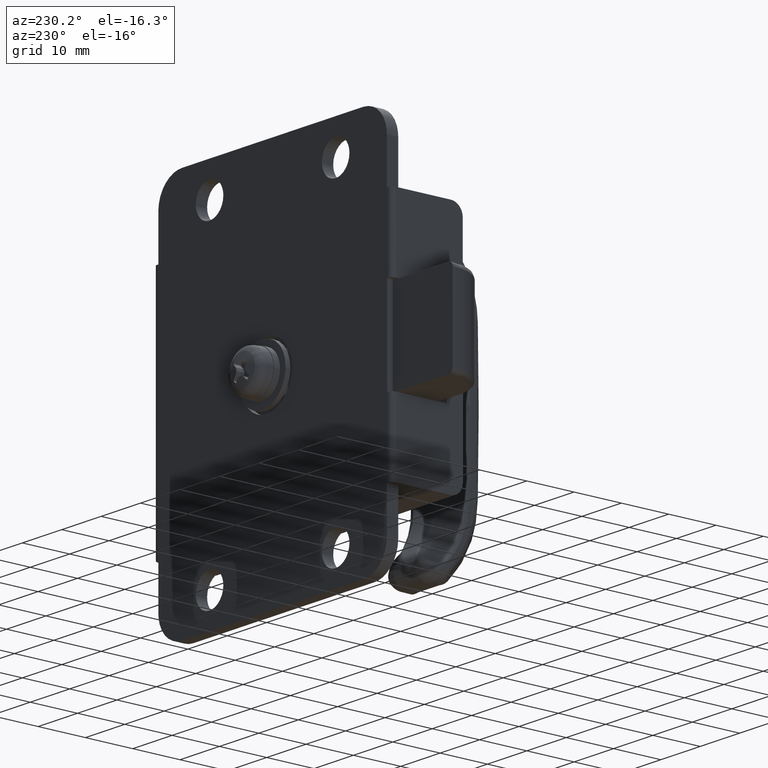
[diagram: clean part render]
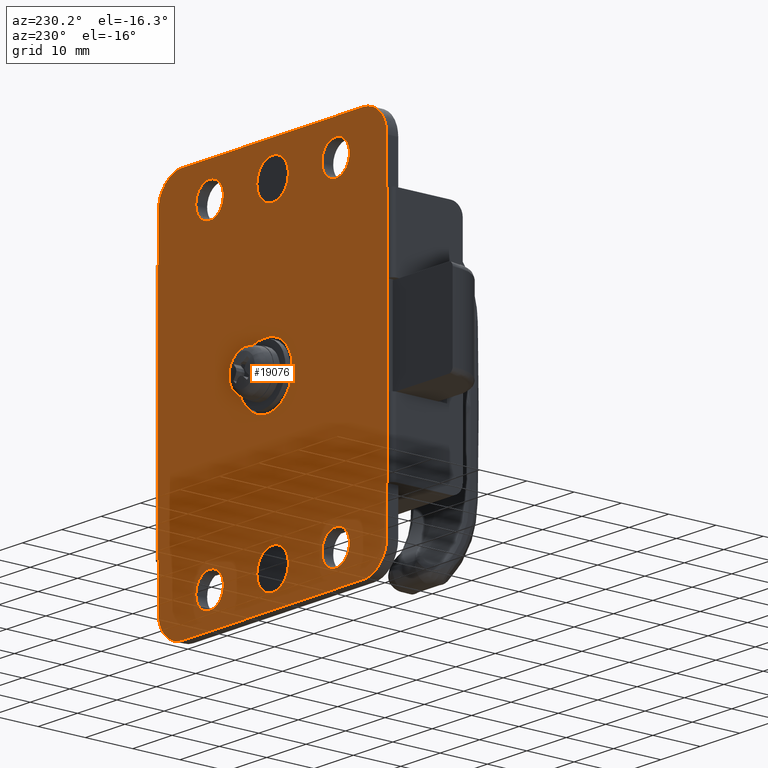
[diagram: same view with one face highlighted and labeled with its STEP entity id]
A machine part, auxiliary view. The second image highlights one B-rep face of the part: STEP entity #19076.
In plain terms, the highlighted face is a freeform B-spline surface patch.
Its self-contained STEP definition (entity closure, byte-faithful):
#15926=CARTESIAN_POINT('',(0.000001214073933,0.0,6.499999149896276));
#15927=VERTEX_POINT('',#15926);
#15928=CARTESIAN_POINT('',(-4.658229887621685,-1.147480E-012,4.533306872404705));
#15929=VERTEX_POINT('',#15928);
#15930=CARTESIAN_POINT('',(0.000001214073933,0.0,6.499999149896276));
#15931=CARTESIAN_POINT('',(-0.459841179488358,-1.132748E-013,6.500080028392675));
#15932=CARTESIAN_POINT('',(-1.244231391181941,-3.064967E-013,6.416385573736515));
#15933=CARTESIAN_POINT('',(-2.362861164571239,-5.820532E-013,6.086066021316561));
#15934=CARTESIAN_POINT('',(-3.512322364629473,-8.652045E-013,5.531662450938428));
#15935=CARTESIAN_POINT('',(-4.262184178228473,-1.049921E-012,4.940528980506946));
#15936=CARTESIAN_POINT('',(-4.658229887621685,-1.147480E-012,4.533306872404705));
#15937=B_SPLINE_CURVE_WITH_KNOTS('',3,(#15930,#15931,#15932,#15933,#15934,#15935,#15936),.UNSPECIFIED.,.F.,.U.,(4,1,1,1,4),(0.000000020541663,1.379513001466831,2.353301232342774,3.489353712815561,5.193458552180939),.UNSPECIFIED.);
#15938=EDGE_CURVE('',#15927,#15929,#15937,.T.);
#15940=CARTESIAN_POINT('',(6.500001214073810,0.0,0.000000410743780));
#15941=VERTEX_POINT('',#15940);
#15942=CARTESIAN_POINT('',(6.500001214073810,0.0,0.000000410743780));
#15943=CARTESIAN_POINT('',(6.500183381790323,0.0,0.558386322220361));
#15944=CARTESIAN_POINT('',(6.382743550411528,0.0,1.462312592546497));
#15945=CARTESIAN_POINT('',(5.932330386673600,0.0,2.745970474024642));
#15946=CARTESIAN_POINT('',(5.372904423925857,0.0,3.719500498956982));
#15947=CARTESIAN_POINT('',(4.600443006949219,0.0,4.637511982863880));
#15948=CARTESIAN_POINT('',(3.660102927218134,0.0,5.428829736314413));
#15949=CARTESIAN_POINT('',(2.480454698086698,0.0,6.059352016665108));
#15950=CARTESIAN_POINT('',(1.223085550253779,0.0,6.423913500989699));
#15951=CARTESIAN_POINT('',(0.398835597850944,0.0,6.500037162722860));
#15952=CARTESIAN_POINT('',(0.000001214073933,0.0,6.499999149896276));
#15953=B_SPLINE_CURVE_WITH_KNOTS('',3,(#15942,#15943,#15944,#15945,#15946,#15947,#15948,#15949,#15950,#15951,#15952),.UNSPECIFIED.,.F.,.U.,(4,1,1,1,1,1,1,1,4),(0.000000073727589,1.675105284821985,2.712095790243967,4.068164782767649,5.025372981359588,6.301626187787408,7.737448314140335,9.013733064899856,10.210239478051360),.UNSPECIFIED.);
#15954=EDGE_CURVE('',#15941,#15927,#15953,.T.);
#15956=CARTESIAN_POINT('',(0.000001214073933,0.0,-6.500000850103724));
#15957=VERTEX_POINT('',#15956);
#15958=CARTESIAN_POINT('',(0.000001214073933,0.0,-6.500000850103724));
#15959=CARTESIAN_POINT('',(0.425419468091053,0.0,-6.500038131746238));
#15960=CARTESIAN_POINT('',(1.329443442783953,0.0,-6.410982996405305));
#15961=CARTESIAN_POINT('',(2.553552627935445,0.0,-6.023199337967311));
#15962=CARTESIAN_POINT('',(3.745949273180482,0.0,-5.366904245080368));
#15963=CARTESIAN_POINT('',(4.662928157023343,0.0,-4.585712041696086));
#15964=CARTESIAN_POINT('',(5.445884586437501,0.0,-3.607325601022900));
#15965=CARTESIAN_POINT('',(6.038566420373886,0.0,-2.530662644440230));
#15966=CARTESIAN_POINT('',(6.419047375966314,0.0,-1.276271735364180));
#15967=CARTESIAN_POINT('',(6.500029881581288,0.0,-0.398831912028541));
#15968=CARTESIAN_POINT('',(6.500001214073810,0.0,0.000000410743780));
#15969=B_SPLINE_CURVE_WITH_KNOTS('',3,(#15958,#15959,#15960,#15961,#15962,#15963,#15964,#15965,#15966,#15967,#15968),.UNSPECIFIED.,.F.,.U.,(4,1,1,1,1,1,1,1,4),(0.000000073292902,1.276262834598748,2.712096167475313,3.828844210639872,5.344389993466797,6.301627065927329,7.577911994136068,9.013734320144378,10.210240899329250),.UNSPECIFIED.);
#15970=EDGE_CURVE('',#15957,#15941,#15969,.T.);
#15972=CARTESIAN_POINT('',(-4.792301662805270,1.084331E-011,-4.391337459658550));
#15973=VERTEX_POINT('',#15972);
#15974=CARTESIAN_POINT('',(-4.792301662805270,1.084331E-011,-4.391337459658550));
#15975=CARTESIAN_POINT('',(-4.470014266427232,1.011408E-011,-4.743168746177070));
#15976=CARTESIAN_POINT('',(-3.853726150676412,8.719637E-012,-5.282354786039023));
#15977=CARTESIAN_POINT('',(-2.907048251229349,6.577636E-012,-5.838384777002165));
#15978=CARTESIAN_POINT('',(-1.970040585758376,4.457516E-012,-6.222041944280977));
#15979=CARTESIAN_POINT('',(-1.010385796531573,2.286152E-012,-6.449952586473560));
#15980=CARTESIAN_POINT('',(-0.308723976614770,6.985371E-013,-6.500008014039865));
#15981=CARTESIAN_POINT('',(0.000001214073933,0.0,-6.500000850103724));
#15982=B_SPLINE_CURVE_WITH_KNOTS('',3,(#15974,#15975,#15976,#15977,#15978,#15979,#15980,#15981),.UNSPECIFIED.,.F.,.U.,(4,1,1,1,1,4),(0.000000020287696,1.431385826503242,2.441789630866848,3.283761284988553,4.462556853747449,5.388741803482988),.UNSPECIFIED.);
#15983=EDGE_CURVE('',#15973,#15957,#15982,.T.);
#16070=CARTESIAN_POINT('',(-6.499998785925945,0.0,-0.000002110951268));
#16071=VERTEX_POINT('',#16070);
#16072=CARTESIAN_POINT('',(-4.658229887621685,-1.147480E-012,4.533306872404705));
#16073=CARTESIAN_POINT('',(-4.913370418764767,-1.081127E-012,4.271168208451562));
#16074=CARTESIAN_POINT('',(-5.395876241704516,-9.323505E-013,3.683400876593052));
#16075=CARTESIAN_POINT('',(-5.923361374798163,-6.950604E-013,2.745947700004574));
#16076=CARTESIAN_POINT('',(-6.372226480713704,-3.835719E-013,1.515361440164832));
#16077=CARTESIAN_POINT('',(-6.500218716589175,-1.521254E-013,0.600994009992553));
#16078=CARTESIAN_POINT('',(-6.499998785925945,0.0,-0.000002110951268));
#16079=B_SPLINE_CURVE_WITH_KNOTS('',3,(#16072,#16073,#16074,#16075,#16076,#16077,#16078),.UNSPECIFIED.,.F.,.U.,(4,1,1,1,4),(0.000000020608749,1.097420616122294,2.273243399303045,3.213875071347015,5.016782707364594),.UNSPECIFIED.);
#16080=EDGE_CURVE('',#15929,#16071,#16079,.T.);
#16106=CARTESIAN_POINT('',(-6.499998785925945,0.0,-0.000002110951268));
#16107=CARTESIAN_POINT('',(-6.500203689797423,1.488242E-012,-0.602712172582890));
#16108=CARTESIAN_POINT('',(-6.359243287920167,3.968181E-012,-1.607041241524421));
#16109=CARTESIAN_POINT('',(-5.774235636873050,7.682835E-012,-3.111406495624638));
#16110=CARTESIAN_POINT('',(-5.199644920703673,9.746427E-012,-3.947122180398708));
#16111=CARTESIAN_POINT('',(-4.792301662805270,1.084331E-011,-4.391337459658550));
#16112=B_SPLINE_CURVE_WITH_KNOTS('',3,(#16106,#16107,#16108,#16109,#16110,#16111),.UNSPECIFIED.,.F.,.U.,(4,1,1,4),(0.000000019844959,1.808062209440842,3.013435774389392,4.821497963998326),.UNSPECIFIED.);
#16113=EDGE_CURVE('',#16071,#15973,#16112,.T.);
#16144=CARTESIAN_POINT('',(-1.499998785926152,0.0,-37.000000000000007));
#16145=VERTEX_POINT('',#16144);
#16146=CARTESIAN_POINT('',(1.366604669854620,-0.000000201454575,-35.789727548058458));
#16147=VERTEX_POINT('',#16146);
#16148=CARTESIAN_POINT('',(-1.499998785926152,0.0,-37.000000000000007));
#16149=CARTESIAN_POINT('',(-1.183723643104041,-0.000000022226679,-37.000071322777082));
#16150=CARTESIAN_POINT('',(-0.684392125966702,-0.000000057317901,-36.940447573322693));
#16151=CARTESIAN_POINT('',(0.015671610982104,-0.000000106515861,-36.719378660604193));
#16152=CARTESIAN_POINT('',(0.688793547945396,-0.000000153820449,-36.384289295974490));
#16153=CARTESIAN_POINT('',(1.134482768710872,-0.000000185141884,-36.028384720098657));
#16154=CARTESIAN_POINT('',(1.366604669854620,-0.000000201454575,-35.789727548058458));
#16155=B_SPLINE_CURVE_WITH_KNOTS('',3,(#16148,#16149,#16150,#16151,#16152,#16153,#16154),.UNSPECIFIED.,.F.,.U.,(4,1,1,1,4),(0.000000030593807,0.948806400947654,1.498125983850119,2.197227317522573,3.195974322571772),.UNSPECIFIED.);
#16156=EDGE_CURVE('',#16145,#16147,#16155,.T.);
#16158=CARTESIAN_POINT('',(-5.499998785925827,0.0,-33.000001612231983));
#16159=VERTEX_POINT('',#16158);
#16160=CARTESIAN_POINT('',(-5.499998785925827,0.0,-33.000001612231983));
#16161=CARTESIAN_POINT('',(-5.500001525574868,0.0,-33.261790844047297));
#16162=CARTESIAN_POINT('',(-5.435656975014309,0.0,-33.916343581664258));
#16163=CARTESIAN_POINT('',(-5.134778120963142,0.0,-34.757280794492381));
#16164=CARTESIAN_POINT('',(-4.642063680529684,0.0,-35.514370881577442));
#16165=CARTESIAN_POINT('',(-4.128324850574525,0.0,-36.047407948665011));
#16166=CARTESIAN_POINT('',(-3.524094921574918,0.0,-36.472911637829050));
#16167=CARTESIAN_POINT('',(-2.677876856124759,0.0,-36.873290390772397));
#16168=CARTESIAN_POINT('',(-1.974576003946698,0.0,-37.000376842314203));
#16169=CARTESIAN_POINT('',(-1.499998785926152,0.0,-37.000000000000007));
#16170=B_SPLINE_CURVE_WITH_KNOTS('',3,(#16160,#16161,#16162,#16163,#16164,#16165,#16166,#16167,#16168,#16169),.UNSPECIFIED.,.F.,.U.,(4,1,1,1,1,1,1,4),(0.000000108576959,0.785400250302001,1.963511929764617,2.650759280250349,3.485196690524951,4.172444822397500,4.859682621764862,6.283223822821110),.UNSPECIFIED.);
#16171=EDGE_CURVE('',#16159,#16145,#16170,.T.);
#16173=CARTESIAN_POINT('',(-1.499998785926152,0.0,-29.0));
#16174=VERTEX_POINT('',#16173);
#16175=CARTESIAN_POINT('',(-1.499998785926152,0.0,-29.0));
#16176=CARTESIAN_POINT('',(-1.827250290858319,0.0,-28.999915900455019));
#16177=CARTESIAN_POINT('',(-2.399894273736523,0.0,-29.070693973084371));
#16178=CARTESIAN_POINT('',(-3.237199313619088,0.0,-29.364456743479170));
#16179=CARTESIAN_POINT('',(-3.898847471605669,0.0,-29.766588783660978));
#16180=CARTESIAN_POINT('',(-4.479362974508260,0.0,-30.299319848093599));
#16181=CARTESIAN_POINT('',(-4.947297036001580,0.0,-30.914266562067979));
#16182=CARTESIAN_POINT('',(-5.376722391936021,0.0,-31.822063207208039));
#16183=CARTESIAN_POINT('',(-5.500270547289325,0.0,-32.558177384986067));
#16184=CARTESIAN_POINT('',(-5.499998785925827,0.0,-33.000001612231983));
#16185=B_SPLINE_CURVE_WITH_KNOTS('',3,(#16175,#16176,#16177,#16178,#16179,#16180,#16181,#16182,#16183,#16184),.UNSPECIFIED.,.F.,.U.,(4,1,1,1,1,1,1,4),(0.000000108015656,0.981740046017023,1.718072172561969,2.650760046777956,3.288865581487397,4.074276608930439,4.957859922224799,6.283225640193822),.UNSPECIFIED.);
#16186=EDGE_CURVE('',#16174,#16159,#16185,.T.);
#16188=CARTESIAN_POINT('',(1.449111005366359,0.000000200762087,-30.297638762638659));
#16189=VERTEX_POINT('',#16188);
#16190=CARTESIAN_POINT('',(1.449111005366359,0.000000200762087,-30.297638762638659));
#16191=CARTESIAN_POINT('',(1.169217391736826,0.000000181708193,-29.991844871452042));
#16192=CARTESIAN_POINT('',(0.622481160158471,0.000000144488857,-29.556002127386261));
#16193=CARTESIAN_POINT('',(-0.394748353222614,0.000000075240462,-29.108414249240081));
#16194=CARTESIAN_POINT('',(-1.085449209246435,0.000000028220665,-28.999775342014139));
#16195=CARTESIAN_POINT('',(-1.499998785926152,0.0,-29.0));
#16196=B_SPLINE_CURVE_WITH_KNOTS('',3,(#16190,#16191,#16192,#16193,#16194,#16195),.UNSPECIFIED.,.F.,.U.,(4,1,1,4),(0.000000032336446,1.243563568369599,2.072585475714446,3.316149011692135),.UNSPECIFIED.);
#16197=EDGE_CURVE('',#16189,#16174,#16196,.T.);
#16281=CARTESIAN_POINT('',(2.500001214073523,0.0,-32.999998387768052));
#16282=VERTEX_POINT('',#16281);
#16283=CARTESIAN_POINT('',(1.366604669854620,-0.000000201454575,-35.789727548058458));
#16284=CARTESIAN_POINT('',(1.635857933224612,-0.000000181489759,-35.513256069546081));
#16285=CARTESIAN_POINT('',(2.064722550578943,-0.000000138727260,-34.921083845692678));
#16286=CARTESIAN_POINT('',(2.426006793312563,-0.000000068506233,-33.948667881310783));
#16287=CARTESIAN_POINT('',(2.500050078368654,-0.000000022061798,-33.305508610894201));
#16288=CARTESIAN_POINT('',(2.500001214073523,0.0,-32.999998387768052));
#16289=B_SPLINE_CURVE_WITH_KNOTS('',3,(#16283,#16284,#16285,#16286,#16287,#16288),.UNSPECIFIED.,.F.,.U.,(4,1,1,4),(0.000000025766387,1.157719774764949,2.170722427097725,3.087251581884832),.UNSPECIFIED.);
#16290=EDGE_CURVE('',#16147,#16282,#16289,.T.);
#16313=CARTESIAN_POINT('',(2.500001214073523,0.0,-32.999998387768052));
#16314=CARTESIAN_POINT('',(2.500200048237245,0.000000030999490,-32.582729446023599));
#16315=CARTESIAN_POINT('',(2.392626751905113,0.000000081503543,-31.902919187501549));
#16316=CARTESIAN_POINT('',(1.995059901470020,0.000000149173262,-30.992050435979792));
#16317=CARTESIAN_POINT('',(1.657970652811291,0.000000183836423,-30.525466744668691));
#16318=CARTESIAN_POINT('',(1.449111005366359,0.000000200762087,-30.297638762638659));
#16319=B_SPLINE_CURVE_WITH_KNOTS('',3,(#16313,#16314,#16315,#16316,#16317,#16318),.UNSPECIFIED.,.F.,.U.,(4,1,1,4),(0.000000023937576,1.251735844676579,2.039862201080216,2.967074945533899),.UNSPECIFIED.);
#16320=EDGE_CURVE('',#16282,#16189,#16319,.T.);
#16351=CARTESIAN_POINT('',(-1.499998785926152,0.0,29.0));
#16352=VERTEX_POINT('',#16351);
#16353=CARTESIAN_POINT('',(1.366604669854617,-0.000000201454577,30.210272451941542));
#16354=VERTEX_POINT('',#16353);
#16355=CARTESIAN_POINT('',(-1.499998785926152,0.0,29.0));
#16356=CARTESIAN_POINT('',(-1.250317663630833,-0.000000017546691,28.999984620846490));
#16357=CARTESIAN_POINT('',(-0.684358410308945,-0.000000057320271,29.053110349382720));
#16358=CARTESIAN_POINT('',(0.034944396499078,-0.000000107870284,29.280243266396859));
#16359=CARTESIAN_POINT('',(0.755097250104413,-0.000000158480035,29.667301565973631));
#16360=CARTESIAN_POINT('',(1.146074654532496,-0.000000185956521,29.983566181588511));
#16361=CARTESIAN_POINT('',(1.366604669854617,-0.000000201454577,30.210272451941542));
#16362=B_SPLINE_CURVE_WITH_KNOTS('',3,(#16355,#16356,#16357,#16358,#16359,#16360,#16361),.UNSPECIFIED.,.F.,.U.,(4,1,1,1,4),(0.000000030591613,0.749055477044994,1.697848369384143,2.247167952248278,3.195974322571788),.UNSPECIFIED.);
#16363=EDGE_CURVE('',#16352,#16354,#16362,.T.);
#16365=CARTESIAN_POINT('',(-5.499998785925828,0.0,32.999998387768031));
#16366=VERTEX_POINT('',#16365);
#16367=CARTESIAN_POINT('',(-5.499998785925828,0.0,32.999998387768031));
#16368=CARTESIAN_POINT('',(-5.500236439886116,0.0,32.574551275655423));
#16369=CARTESIAN_POINT('',(-5.381388510438470,0.0,31.838378130129222));
#16370=CARTESIAN_POINT('',(-4.985056415219311,0.0,30.987098883025030));
#16371=CARTESIAN_POINT('',(-4.523707441163798,0.0,30.348842265182430));
#16372=CARTESIAN_POINT('',(-4.026223227794317,0.0,29.869333311717551));
#16373=CARTESIAN_POINT('',(-3.409533238678607,0.0,29.462763137422449));
#16374=CARTESIAN_POINT('',(-2.596158501622823,0.0,29.108062774392241));
#16375=CARTESIAN_POINT('',(-1.925453131651718,0.0,28.999771771772750));
#16376=CARTESIAN_POINT('',(-1.499998785926152,0.0,29.0));
#16377=B_SPLINE_CURVE_WITH_KNOTS('',3,(#16367,#16368,#16369,#16370,#16371,#16372,#16373,#16374,#16375,#16376),.UNSPECIFIED.,.F.,.U.,(4,1,1,1,1,1,1,4),(0.000000108588200,1.276275908885647,2.208947290357570,2.798027215679833,3.632465371676748,4.270617909345514,5.006949965513584,6.283223822821134),.UNSPECIFIED.);
#16378=EDGE_CURVE('',#16366,#16352,#16377,.T.);
#16380=CARTESIAN_POINT('',(-1.499998785926152,0.0,37.000000000000007));
#16381=VERTEX_POINT('',#16380);
#16382=CARTESIAN_POINT('',(-1.499998785926152,0.0,37.000000000000007));
#16383=CARTESIAN_POINT('',(-1.843617509283612,0.0,37.000098211888307));
#16384=CARTESIAN_POINT('',(-2.514432584139297,0.0,36.913020234389307));
#16385=CARTESIAN_POINT('',(-3.478864647927550,0.0,36.527462647887347));
#16386=CARTESIAN_POINT('',(-4.261317476336598,0.0,35.947064808642523));
#16387=CARTESIAN_POINT('',(-4.850098436693358,0.0,35.238455646514169));
#16388=CARTESIAN_POINT('',(-5.233409948449523,0.0,34.510631877974028));
#16389=CARTESIAN_POINT('',(-5.453173304095849,0.0,33.752659379661303));
#16390=CARTESIAN_POINT('',(-5.500023054912599,0.0,33.245429712103522));
#16391=CARTESIAN_POINT('',(-5.499998785925828,0.0,32.999998387768031));
#16392=B_SPLINE_CURVE_WITH_KNOTS('',3,(#16382,#16383,#16384,#16385,#16386,#16387,#16388,#16389,#16390,#16391),.UNSPECIFIED.,.F.,.U.,(4,1,1,1,1,1,1,4),(0.000000108008802,1.030838134689634,2.012606892789120,3.092557573881690,3.927009305494114,4.761507978761594,5.546930569404064,6.283225640193830),.UNSPECIFIED.);
#16393=EDGE_CURVE('',#16381,#16366,#16392,.T.);
#16395=CARTESIAN_POINT('',(1.449111005366362,0.000000200762088,35.702361237361352));
#16396=VERTEX_POINT('',#16395);
#16397=CARTESIAN_POINT('',(1.449111005366362,0.000000200762088,35.702361237361352));
#16398=CARTESIAN_POINT('',(1.239123320001692,0.000000186467074,35.931616870198411));
#16399=CARTESIAN_POINT('',(0.752162978039586,0.000000153317011,36.352124863564889));
#16400=CARTESIAN_POINT('',(-0.239360043507532,0.000000085818598,36.859442777924158));
#16401=CARTESIAN_POINT('',(-1.033624314040652,0.000000031748670,37.000342210986837));
#16402=CARTESIAN_POINT('',(-1.499998785926152,0.0,37.000000000000007));
#16403=B_SPLINE_CURVE_WITH_KNOTS('',3,(#16397,#16398,#16399,#16400,#16401,#16402),.UNSPECIFIED.,.F.,.U.,(4,1,1,4),(0.000000032336572,0.932668274647672,1.917137315132633,3.316149011692134),.UNSPECIFIED.);
#16404=EDGE_CURVE('',#16396,#16381,#16403,.T.);
#16487=CARTESIAN_POINT('',(2.500001214073523,0.0,33.000001612231948));
#16488=VERTEX_POINT('',#16487);
#16489=CARTESIAN_POINT('',(1.366604669854617,-0.000000201454577,30.210272451941542));
#16490=CARTESIAN_POINT('',(1.635887110017126,-0.000000181490989,30.486726906531000));
#16491=CARTESIAN_POINT('',(1.988393988247696,-0.000000146327231,30.973672285058228));
#16492=CARTESIAN_POINT('',(2.394225970409088,-0.000000077785456,31.922834085017310));
#16493=CARTESIAN_POINT('',(2.500248403765069,-0.000000031353820,32.565816138244323));
#16494=CARTESIAN_POINT('',(2.500001214073523,0.0,33.000001612231948));
#16495=B_SPLINE_CURVE_WITH_KNOTS('',3,(#16489,#16490,#16491,#16492,#16493,#16494),.UNSPECIFIED.,.F.,.U.,(4,1,1,4),(0.000000025762369,1.157719774763500,1.784811702620926,3.087251581884830),.UNSPECIFIED.);
#16496=EDGE_CURVE('',#16354,#16488,#16495,.T.);
#16520=CARTESIAN_POINT('',(2.500001214073523,0.0,33.000001612231948));
#16521=CARTESIAN_POINT('',(2.500241529310926,0.000000032147319,33.432720911696897));
#16522=CARTESIAN_POINT('',(2.373389318403611,0.000000089540679,34.205264744601394));
#16523=CARTESIAN_POINT('',(1.937818739859973,0.000000156172384,35.102161289169750));
#16524=CARTESIAN_POINT('',(1.595272414628507,0.000000188912266,35.542856642503317));
#16525=CARTESIAN_POINT('',(1.449111005366362,0.000000200762088,35.702361237361352));
#16526=B_SPLINE_CURVE_WITH_KNOTS('',3,(#16520,#16521,#16522,#16523,#16524,#16525),.UNSPECIFIED.,.F.,.U.,(4,1,1,4),(0.000000023941106,1.298107694202588,2.318029034854990,2.967074945533884),.UNSPECIFIED.);
#16527=EDGE_CURVE('',#16488,#16396,#16526,.T.);
#16558=CARTESIAN_POINT('',(17.172446280712450,2.643588E-011,35.260097426525313));
#16559=VERTEX_POINT('',#16558);
#16560=CARTESIAN_POINT('',(14.500001214073921,0.0,36.500000000000007));
#16561=VERTEX_POINT('',#16560);
#16562=CARTESIAN_POINT('',(17.172446280712450,2.643588E-011,35.260097426525313));
#16563=CARTESIAN_POINT('',(16.978195358187829,2.451434E-011,35.489924577788621));
#16564=CARTESIAN_POINT('',(16.541700835938521,2.019653E-011,35.888162284643357));
#16565=CARTESIAN_POINT('',(15.640083571687150,1.127772E-011,36.367689438863749));
#16566=CARTESIAN_POINT('',(14.927673431621921,4.230541E-012,36.500376171870208));
#16567=CARTESIAN_POINT('',(14.500001214073921,0.0,36.500000000000007));
#16568=B_SPLINE_CURVE_WITH_KNOTS('',3,(#16562,#16563,#16564,#16565,#16566,#16567),.UNSPECIFIED.,.F.,.U.,(4,1,1,4),(0.000000035719244,0.902750078083420,1.757967933580385,3.040829194683356),.UNSPECIFIED.);
#16569=EDGE_CURVE('',#16559,#16561,#16568,.T.);
#16631=CARTESIAN_POINT('',(16.909241963286739,-2.616963E-011,30.461190049936601));
#16632=VERTEX_POINT('',#16631);
#16638=CARTESIAN_POINT('',(14.500001214073921,0.0,29.500000000000000));
#16639=VERTEX_POINT('',#16638);
#16640=CARTESIAN_POINT('',(14.500001214073921,0.0,29.500000000000000));
#16641=CARTESIAN_POINT('',(14.887550420704660,-4.209634E-012,29.499782910625498));
#16642=CARTESIAN_POINT('',(15.524028612143960,-1.112318E-011,29.606828965461059));
#16643=CARTESIAN_POINT('',(16.330371282973640,-1.988183E-011,29.985511183098019));
#16644=CARTESIAN_POINT('',(16.728562714012810,-2.420706E-011,30.289678100098921));
#16645=CARTESIAN_POINT('',(16.909241963286739,-2.616963E-011,30.461190049936601));
#16646=B_SPLINE_CURVE_WITH_KNOTS('',3,(#16640,#16641,#16642,#16643,#16644,#16645),.UNSPECIFIED.,.F.,.U.,(4,1,1,4),(0.000000026550223,1.162570061384857,1.909918242445474,2.657279248128230),.UNSPECIFIED.);
#16647=EDGE_CURVE('',#16639,#16632,#16646,.T.);
#16649=CARTESIAN_POINT('',(11.000001214074359,0.0,32.999998254870377));
#16650=VERTEX_POINT('',#16649);
#16651=CARTESIAN_POINT('',(11.000001214074359,0.0,32.999998254870377));
#16652=CARTESIAN_POINT('',(10.999922702182561,0.0,32.699332547900873));
#16653=CARTESIAN_POINT('',(11.063127002079380,0.0,32.212598866230422));
#16654=CARTESIAN_POINT('',(11.324660972148060,0.0,31.467165103587771));
#16655=CARTESIAN_POINT('',(11.714510682934741,0.0,30.825663256581880));
#16656=CARTESIAN_POINT('',(12.264584710573491,0.0,30.275669783306089));
#16657=CARTESIAN_POINT('',(12.876769079647010,0.0,29.872032341781200));
#16658=CARTESIAN_POINT('',(13.612390613247991,0.0,29.577846867380160));
#16659=CARTESIAN_POINT('',(14.185015083390700,0.0,29.499888402775799));
#16660=CARTESIAN_POINT('',(14.500001214073921,0.0,29.500000000000000));
#16661=B_SPLINE_CURVE_WITH_KNOTS('',3,(#16651,#16652,#16653,#16654,#16655,#16656,#16657,#16658,#16659,#16660),.UNSPECIFIED.,.F.,.U.,(4,1,1,1,1,1,1,4),(0.000000102146859,0.901978376184235,1.460361594069925,2.362368726357496,3.135454784094645,3.779750652652952,4.552895210826786,5.497820656481328),.UNSPECIFIED.);
#16662=EDGE_CURVE('',#16650,#16639,#16661,.T.);
#16664=CARTESIAN_POINT('',(14.500001214073921,0.0,36.500000000000007));
#16665=CARTESIAN_POINT('',(14.199339371578240,0.0,36.500073603136499));
#16666=CARTESIAN_POINT('',(13.583720982109700,0.0,36.420219185640377));
#16667=CARTESIAN_POINT('',(12.849562354033880,0.0,36.116159061575061));
#16668=CARTESIAN_POINT('',(12.281395214752010,0.0,35.726212968532103));
#16669=CARTESIAN_POINT('',(11.844263560641931,0.0,35.310077359996477));
#16670=CARTESIAN_POINT('',(11.507175547486920,0.0,34.843703045063862));
#16671=CARTESIAN_POINT('',(11.242759166916461,0.0,34.318377104087837));
#16672=CARTESIAN_POINT('',(11.052430161298391,0.0,33.730154135407048));
#16673=CARTESIAN_POINT('',(10.999949685649170,0.0,33.257710660482381));
#16674=CARTESIAN_POINT('',(11.000001214074359,0.0,32.999998254870377));
#16675=B_SPLINE_CURVE_WITH_KNOTS('',3,(#16664,#16665,#16666,#16667,#16668,#16669,#16670,#16671,#16672,#16673,#16674),.UNSPECIFIED.,.F.,.U.,(4,1,1,1,1,1,1,1,4),(0.000000101519645,0.901978698585748,1.846935036658562,2.362369571799328,2.963665000347733,3.650890574721147,4.080416664221138,4.724695051800475,5.497822623661585),.UNSPECIFIED.);
#16676=EDGE_CURVE('',#16561,#16650,#16675,.T.);
#16695=CARTESIAN_POINT('',(18.000001214073482,0.0,33.000001745129588));
#16696=VERTEX_POINT('',#16695);
#16697=CARTESIAN_POINT('',(18.000001214073482,0.0,33.000001745129588));
#16698=CARTESIAN_POINT('',(18.000375954078049,4.939996E-012,33.422339378035247));
#16699=CARTESIAN_POINT('',(17.849804508286450,1.451617E-011,34.241040216324372));
#16700=CARTESIAN_POINT('',(17.428847521624849,2.289455E-011,34.957337013357922));
#16701=CARTESIAN_POINT('',(17.172446280712450,2.643588E-011,35.260097426525313));
#16702=B_SPLINE_CURVE_WITH_KNOTS('',3,(#16697,#16698,#16699,#16700,#16701),.UNSPECIFIED.,.F.,.U.,(4,1,4),(0.000000020260841,1.266871388197176,2.456992204959122),.UNSPECIFIED.);
#16703=EDGE_CURVE('',#16696,#16559,#16702,.T.);
#16705=CARTESIAN_POINT('',(16.909241963286739,-2.616963E-011,30.461190049936601));
#16706=CARTESIAN_POINT('',(17.102426251745161,-2.428037E-011,30.644474286787609));
#16707=CARTESIAN_POINT('',(17.494609004277820,-1.945681E-011,31.112425332768080));
#16708=CARTESIAN_POINT('',(17.900008935678802,-1.052199E-011,31.979225583623538));
#16709=CARTESIAN_POINT('',(18.000140132188431,-3.507597E-012,32.659717045239283));
#16710=CARTESIAN_POINT('',(18.000001214073482,0.0,33.000001745129588));
#16711=B_SPLINE_CURVE_WITH_KNOTS('',3,(#16705,#16706,#16707,#16708,#16709,#16710),.UNSPECIFIED.,.F.,.U.,(4,1,1,4),(0.000000032784071,0.798904985991805,1.819715466482118,2.840543909845533),.UNSPECIFIED.);
#16712=EDGE_CURVE('',#16632,#16696,#16711,.T.);
#16765=CARTESIAN_POINT('',(-14.827553719287620,2.643588E-011,35.260097426525313));
#16766=VERTEX_POINT('',#16765);
#16767=CARTESIAN_POINT('',(-17.499998785926149,0.0,36.500000000000007));
#16768=VERTEX_POINT('',#16767);
#16769=CARTESIAN_POINT('',(-14.827553719287620,2.643588E-011,35.260097426525313));
#16770=CARTESIAN_POINT('',(-15.011595583175030,2.461533E-011,35.477810054493901));
#16771=CARTESIAN_POINT('',(-15.444974978962289,2.032833E-011,35.878707982146452));
#16772=CARTESIAN_POINT('',(-16.344063395590059,1.143453E-011,36.364771253181473));
#16773=CARTESIAN_POINT('',(-17.072335161758080,4.230456E-012,36.500363370163427));
#16774=CARTESIAN_POINT('',(-17.499998785926149,0.0,36.500000000000007));
#16775=B_SPLINE_CURVE_WITH_KNOTS('',3,(#16769,#16770,#16771,#16772,#16773,#16774),.UNSPECIFIED.,.F.,.U.,(4,1,1,4),(0.000000035719462,0.855234592803688,1.757967933579776,3.040829194683393),.UNSPECIFIED.);
#16776=EDGE_CURVE('',#16766,#16768,#16775,.T.);
#16839=CARTESIAN_POINT('',(-15.090758036713330,-2.616963E-011,30.461190049936601));
#16840=VERTEX_POINT('',#16839);
#16846=CARTESIAN_POINT('',(-17.499998785926149,0.0,29.500000000000000));
#16847=VERTEX_POINT('',#16846);
#16848=CARTESIAN_POINT('',(-17.499998785926149,0.0,29.500000000000000));
#16849=CARTESIAN_POINT('',(-17.181664059233679,-3.457813E-012,29.499876175342660));
#16850=CARTESIAN_POINT('',(-16.683508647054470,-8.868872E-012,29.568482560411280));
#16851=CARTESIAN_POINT('',(-15.848915378165060,-1.793438E-011,29.873020901774240));
#16852=CARTESIAN_POINT('',(-15.371714584144319,-2.311783E-011,30.194228167559050));
#16853=CARTESIAN_POINT('',(-15.090758036713330,-2.616963E-011,30.461190049936601));
#16854=B_SPLINE_CURVE_WITH_KNOTS('',3,(#16848,#16849,#16850,#16851,#16852,#16853),.UNSPECIFIED.,.F.,.U.,(4,1,1,4),(0.000000026551452,0.954961783637544,1.494709213344978,2.657279248128231),.UNSPECIFIED.);
#16855=EDGE_CURVE('',#16847,#16840,#16854,.T.);
#16857=CARTESIAN_POINT('',(-20.999998785925708,0.0,32.999998254870377));
#16858=VERTEX_POINT('',#16857);
#16859=CARTESIAN_POINT('',(-20.999998785925708,0.0,32.999998254870377));
#16860=CARTESIAN_POINT('',(-21.000033966090509,0.0,32.742296463949593));
#16861=CARTESIAN_POINT('',(-20.936520819292362,0.0,32.169598709866733));
#16862=CARTESIAN_POINT('',(-20.649618638772381,0.0,31.397680872629369));
#16863=CARTESIAN_POINT('',(-20.165323733761010,0.0,30.682466262378931));
#16864=CARTESIAN_POINT('',(-19.633492071302999,0.0,30.194460036657109));
#16865=CARTESIAN_POINT('',(-19.042395582718530,0.0,29.840254144550940));
#16866=CARTESIAN_POINT('',(-18.373281700251749,0.0,29.577377604144370));
#16867=CARTESIAN_POINT('',(-17.829307713539901,0.0,29.499866078639101));
#16868=CARTESIAN_POINT('',(-17.499998785926149,0.0,29.500000000000000));
#16869=B_SPLINE_CURVE_WITH_KNOTS('',3,(#16859,#16860,#16861,#16862,#16863,#16864,#16865,#16866,#16867,#16868),.UNSPECIFIED.,.F.,.U.,(4,1,1,1,1,1,1,4),(0.000000102129741,0.773114264907706,1.718072327788990,2.448262336582348,3.350222836631181,3.865654999035774,4.509934724384633,5.497820656481434),.UNSPECIFIED.);
#16870=EDGE_CURVE('',#16858,#16847,#16869,.T.);
#16872=CARTESIAN_POINT('',(-17.499998785926149,0.0,36.500000000000007));
#16873=CARTESIAN_POINT('',(-17.800666238035650,0.0,36.500089410015882));
#16874=CARTESIAN_POINT('',(-18.287395768216442,0.0,36.436861764500563));
#16875=CARTESIAN_POINT('',(-19.032829091105079,0.0,36.175337764026601));
#16876=CARTESIAN_POINT('',(-19.736061267654431,0.0,35.748043516245879));
#16877=CARTESIAN_POINT('',(-20.340343912036879,0.0,35.105461982914463));
#16878=CARTESIAN_POINT('',(-20.726270174498872,0.0,34.414141276611950));
#16879=CARTESIAN_POINT('',(-20.947565553250239,0.0,33.730150839641588));
#16880=CARTESIAN_POINT('',(-21.000050407612100,0.0,33.257710797364702));
#16881=CARTESIAN_POINT('',(-20.999998785925708,0.0,32.999998254870377));
#16882=B_SPLINE_CURVE_WITH_KNOTS('',3,(#16872,#16873,#16874,#16875,#16876,#16877,#16878,#16879,#16880,#16881),.UNSPECIFIED.,.F.,.U.,(4,1,1,1,1,1,1,4),(0.000000101531078,0.901978698593791,1.460362116029285,2.362369571803066,3.350224037189566,4.080416664221897,4.724695051800785,5.497822623661588),.UNSPECIFIED.);
#16883=EDGE_CURVE('',#16768,#16858,#16882,.T.);
#16902=CARTESIAN_POINT('',(-13.999998785926589,0.0,33.000001745129588));
#16903=VERTEX_POINT('',#16902);
#16904=CARTESIAN_POINT('',(-13.999998785926589,0.0,33.000001745129588));
#16905=CARTESIAN_POINT('',(-13.999726327085520,4.640630E-012,33.396745533298478));
#16906=CARTESIAN_POINT('',(-14.140847061883800,1.421751E-011,34.215507036772379));
#16907=CARTESIAN_POINT('',(-14.554546196165720,2.266674E-011,34.937861317123499));
#16908=CARTESIAN_POINT('',(-14.827553719287620,2.643588E-011,35.260097426525313));
#16909=B_SPLINE_CURVE_WITH_KNOTS('',3,(#16904,#16905,#16906,#16907,#16908),.UNSPECIFIED.,.F.,.U.,(4,1,4),(0.000000020260708,1.190120836983459,2.456992204959135),.UNSPECIFIED.);
#16910=EDGE_CURVE('',#16903,#16766,#16909,.T.);
#16912=CARTESIAN_POINT('',(-15.090758036713330,-2.616963E-011,30.461190049936601));
#16913=CARTESIAN_POINT('',(-14.854577751074860,-2.386104E-011,30.685154815079720));
#16914=CARTESIAN_POINT('',(-14.445440104749840,-1.855805E-011,31.199617939725218));
#16915=CARTESIAN_POINT('',(-14.079198133360601,-9.454852E-012,32.082752255294999));
#16916=CARTESIAN_POINT('',(-13.999930538974210,-3.049990E-012,32.704111198651873));
#16917=CARTESIAN_POINT('',(-13.999998785926589,0.0,33.000001745129588));
#16918=B_SPLINE_CURVE_WITH_KNOTS('',3,(#16912,#16913,#16914,#16915,#16916,#16917),.UNSPECIFIED.,.F.,.U.,(4,1,1,4),(0.000000032783439,0.976438649750582,1.952871826141500,2.840543909845548),.UNSPECIFIED.);
#16919=EDGE_CURVE('',#16840,#16903,#16918,.T.);
#16973=CARTESIAN_POINT('',(-14.827553719287620,2.643588E-011,-30.739902573474691));
#16974=VERTEX_POINT('',#16973);
#16975=CARTESIAN_POINT('',(-17.499998785926149,0.0,-29.500000000000000));
#16976=VERTEX_POINT('',#16975);
#16977=CARTESIAN_POINT('',(-14.827553719287620,2.643588E-011,-30.739902573474691));
#16978=CARTESIAN_POINT('',(-14.960499649969790,2.512077E-011,-30.582697100474789));
#16979=CARTESIAN_POINT('',(-15.333246941418370,2.143355E-011,-30.213437316549751));
#16980=CARTESIAN_POINT('',(-16.011789999694809,1.472139E-011,-29.791193908043461));
#16981=CARTESIAN_POINT('',(-16.787309417233409,7.049936E-012,-29.546791706249369));
#16982=CARTESIAN_POINT('',(-17.278274307782560,2.193303E-012,-29.499981756137661));
#16983=CARTESIAN_POINT('',(-17.499998785926149,0.0,-29.500000000000000));
#16984=B_SPLINE_CURVE_WITH_KNOTS('',3,(#16977,#16978,#16979,#16980,#16981,#16982,#16983),.UNSPECIFIED.,.F.,.U.,(4,1,1,1,4),(0.000000035719433,0.617664572872586,1.567910452550628,2.375649172285493,3.040829194683379),.UNSPECIFIED.);
#16985=EDGE_CURVE('',#16974,#16976,#16984,.T.);
#17046=CARTESIAN_POINT('',(-15.090758036713330,-2.616963E-011,-35.538809950063403));
#17047=VERTEX_POINT('',#17046);
#17053=CARTESIAN_POINT('',(-17.499998785926149,0.0,-36.500000000000007));
#17054=VERTEX_POINT('',#17053);
#17055=CARTESIAN_POINT('',(-17.499998785926149,0.0,-36.500000000000007));
#17056=CARTESIAN_POINT('',(-17.112427373352560,-4.209875E-012,-36.500276749443692));
#17057=CARTESIAN_POINT('',(-16.586706636472961,-9.920354E-012,-36.411721809007062));
#17058=CARTESIAN_POINT('',(-15.766483011255360,-1.882978E-011,-36.073166965714968));
#17059=CARTESIAN_POINT('',(-15.351670098643760,-2.333556E-011,-35.786664500175263));
#17060=CARTESIAN_POINT('',(-15.090758036713330,-2.616963E-011,-35.538809950063403));
#17061=B_SPLINE_CURVE_WITH_KNOTS('',3,(#17055,#17056,#17057,#17058,#17059,#17060),.UNSPECIFIED.,.F.,.U.,(4,1,1,4),(0.000000026550921,1.162570061385353,1.577748749399349,2.657279248128239),.UNSPECIFIED.);
#17062=EDGE_CURVE('',#17054,#17047,#17061,.T.);
#17064=CARTESIAN_POINT('',(-20.999998785925719,0.0,-33.000001745129623));
#17065=VERTEX_POINT('',#17064);
#17066=CARTESIAN_POINT('',(-20.999998785925719,0.0,-33.000001745129623));
#17067=CARTESIAN_POINT('',(-21.000092480214459,0.0,-33.300669419493040));
#17068=CARTESIAN_POINT('',(-20.936857095172719,0.0,-33.787398914455970));
#17069=CARTESIAN_POINT('',(-20.675344201064370,0.0,-34.532833323383912));
#17070=CARTESIAN_POINT('',(-20.285492394492259,0.0,-35.174344083989070));
#17071=CARTESIAN_POINT('',(-19.735408594543092,0.0,-35.724319737061187));
#17072=CARTESIAN_POINT('',(-19.135238101968799,0.0,-36.120047272157990));
#17073=CARTESIAN_POINT('',(-18.401918630941431,0.0,-36.418561109218707));
#17074=CARTESIAN_POINT('',(-17.829305363549810,0.0,-36.500125039213302));
#17075=CARTESIAN_POINT('',(-17.499998785926149,0.0,-36.500000000000007));
#17076=B_SPLINE_CURVE_WITH_KNOTS('',3,(#17066,#17067,#17068,#17069,#17070,#17071,#17072,#17073,#17074,#17075),.UNSPECIFIED.,.F.,.U.,(4,1,1,1,1,1,1,4),(0.000000102119286,0.901978376160910,1.460361594049888,2.362368726343066,3.135454784083588,3.779750652644653,4.509934724382101,5.497820656481443),.UNSPECIFIED.);
#17077=EDGE_CURVE('',#17065,#17054,#17076,.T.);
#17079=CARTESIAN_POINT('',(-17.499998785926149,0.0,-29.500000000000000));
#17080=CARTESIAN_POINT('',(-17.857948921010120,0.0,-29.499814921975609));
#17081=CARTESIAN_POINT('',(-18.516430165023799,0.0,-29.601931348080530));
#17082=CARTESIAN_POINT('',(-19.340982517444829,0.0,-29.985747982172651));
#17083=CARTESIAN_POINT('',(-19.984729643303339,0.0,-30.494550620432509));
#17084=CARTESIAN_POINT('',(-20.420352583386830,0.0,-31.032087605400751));
#17085=CARTESIAN_POINT('',(-20.738407020014218,0.0,-31.627155001259709));
#17086=CARTESIAN_POINT('',(-20.945982071615710,0.0,-32.255529213409268));
#17087=CARTESIAN_POINT('',(-21.000050318238259,0.0,-32.742289332884368));
#17088=CARTESIAN_POINT('',(-20.999998785925719,0.0,-33.000001745129623));
#17089=B_SPLINE_CURVE_WITH_KNOTS('',3,(#17079,#17080,#17081,#17082,#17083,#17084,#17085,#17086,#17087,#17088),.UNSPECIFIED.,.F.,.U.,(4,1,1,1,1,1,1,4),(0.000000101523584,1.073785355475691,1.975798393274916,2.705995962222471,3.522026930227669,4.037463279813372,4.724695051800845,5.497822623661584),.UNSPECIFIED.);
#17090=EDGE_CURVE('',#16976,#17065,#17089,.T.);
#17109=CARTESIAN_POINT('',(-13.999998785926589,0.0,-32.999998254870427));
#17110=VERTEX_POINT('',#17109);
#17111=CARTESIAN_POINT('',(-13.999998785926589,0.0,-32.999998254870427));
#17112=CARTESIAN_POINT('',(-13.999858701329590,3.891965E-012,-32.667260494607049));
#17113=CARTESIAN_POINT('',(-14.066200376228640,9.279487E-012,-32.206662300336227));
#17114=CARTESIAN_POINT('',(-14.339761547394881,1.832447E-011,-31.433374567515450));
#17115=CARTESIAN_POINT('',(-14.596010819928839,2.323689E-011,-31.013394749845620));
#17116=CARTESIAN_POINT('',(-14.827553719287620,2.643588E-011,-30.739902573474691));
#17117=B_SPLINE_CURVE_WITH_KNOTS('',3,(#17111,#17112,#17113,#17114,#17115,#17116),.UNSPECIFIED.,.F.,.U.,(4,1,1,4),(0.000000020261674,0.998159314376637,1.382052701721269,2.456992204959148),.UNSPECIFIED.);
#17118=EDGE_CURVE('',#17110,#16974,#17117,.T.);
#17120=CARTESIAN_POINT('',(-15.090758036713330,-2.616963E-011,-35.538809950063403));
#17121=CARTESIAN_POINT('',(-14.800779881579540,-2.333719E-011,-35.264024194939608));
#17122=CARTESIAN_POINT('',(-14.406527427068720,-1.787502E-011,-34.734119474337952));
#17123=CARTESIAN_POINT('',(-14.069840697747400,-8.691976E-012,-33.843238450667833));
#17124=CARTESIAN_POINT('',(-13.999916838139340,-3.050062E-012,-33.295895824754197));
#17125=CARTESIAN_POINT('',(-13.999998785926589,0.0,-32.999998254870427));
#17126=B_SPLINE_CURVE_WITH_KNOTS('',3,(#17120,#17121,#17122,#17123,#17124,#17125),.UNSPECIFIED.,.F.,.U.,(4,1,1,4),(0.000000032786482,1.198355624146126,1.952871826141386,2.840543909845533),.UNSPECIFIED.);
#17127=EDGE_CURVE('',#17047,#17110,#17126,.T.);
#17179=CARTESIAN_POINT('',(17.172446280712450,2.643588E-011,-30.739902573474691));
#17180=VERTEX_POINT('',#17179);
#17181=CARTESIAN_POINT('',(14.500001214073921,0.0,-29.500000000000000));
#17182=VERTEX_POINT('',#17181);
#17183=CARTESIAN_POINT('',(17.172446280712450,2.643588E-011,-30.739902573474691));
#17184=CARTESIAN_POINT('',(16.957764899689781,2.431224E-011,-30.485852966236820));
#17185=CARTESIAN_POINT('',(16.562904057956629,2.040627E-011,-30.135446519930280));
#17186=CARTESIAN_POINT('',(15.866517233342799,1.351760E-011,-29.752911948359291));
#17187=CARTESIAN_POINT('',(15.212696117015049,7.049991E-012,-29.546785521495309));
#17188=CARTESIAN_POINT('',(14.721726003117610,2.193306E-012,-29.499979090886690));
#17189=CARTESIAN_POINT('',(14.500001214073921,0.0,-29.500000000000000));
#17190=B_SPLINE_CURVE_WITH_KNOTS('',3,(#17183,#17184,#17185,#17186,#17187,#17188,#17189),.UNSPECIFIED.,.F.,.U.,(4,1,1,1,4),(0.000000035718695,0.997776417624719,1.567910452550205,2.375649172285527,3.040829194683383),.UNSPECIFIED.);
#17191=EDGE_CURVE('',#17180,#17182,#17190,.T.);
#17253=CARTESIAN_POINT('',(16.909241963286739,-2.616963E-011,-35.538809950063403));
#17254=VERTEX_POINT('',#17253);
#17260=CARTESIAN_POINT('',(14.500001214073921,0.0,-36.500000000000007));
#17261=VERTEX_POINT('',#17260);
#17262=CARTESIAN_POINT('',(14.500001214073921,0.0,-36.500000000000007));
#17263=CARTESIAN_POINT('',(14.693758851110861,-2.104633E-012,-36.500006569196792));
#17264=CARTESIAN_POINT('',(15.150469271954099,-7.065509E-012,-36.462007751211807));
#17265=CARTESIAN_POINT('',(16.007493458374981,-1.637467E-011,-36.216803109296777));
#17266=CARTESIAN_POINT('',(16.598252975663328,-2.279161E-011,-35.834476825575138));
#17267=CARTESIAN_POINT('',(16.909241963286739,-2.616963E-011,-35.538809950063403));
#17268=B_SPLINE_CURVE_WITH_KNOTS('',3,(#17262,#17263,#17264,#17265,#17266,#17267),.UNSPECIFIED.,.F.,.U.,(4,1,1,4),(0.000000026554362,0.581278631659986,1.370142638461770,2.657279248128203),.UNSPECIFIED.);
#17269=EDGE_CURVE('',#17261,#17254,#17268,.T.);
#17271=CARTESIAN_POINT('',(11.000001214074359,0.0,-33.000001745129623));
#17272=VERTEX_POINT('',#17271);
#17273=CARTESIAN_POINT('',(11.000001214074359,0.0,-33.000001745129623));
#17274=CARTESIAN_POINT('',(10.999969935584531,0.0,-33.229073064340568));
#17275=CARTESIAN_POINT('',(11.043753833955449,0.0,-33.672882924514582));
#17276=CARTESIAN_POINT('',(11.268502565050630,0.0,-34.431089884342953));
#17277=CARTESIAN_POINT('',(11.698475978946670,0.0,-35.168837693654382));
#17278=CARTESIAN_POINT('',(12.287075004279480,0.0,-35.742982506087422));
#17279=CARTESIAN_POINT('',(12.903523545764340,0.0,-36.138658280460803));
#17280=CARTESIAN_POINT('',(13.612376207372421,0.0,-36.422178529937703));
#17281=CARTESIAN_POINT('',(14.185023115351100,0.0,-36.500091978318842));
#17282=CARTESIAN_POINT('',(14.500001214073921,0.0,-36.500000000000007));
#17283=B_SPLINE_CURVE_WITH_KNOTS('',3,(#17273,#17274,#17275,#17276,#17277,#17278,#17279,#17280,#17281,#17282),.UNSPECIFIED.,.F.,.U.,(4,1,1,1,1,1,1,4),(0.000000102122082,0.687211086697017,1.331503588241032,2.362368726342363,3.221355579600102,3.779750652644481,4.552895210822042,5.497820656481443),.UNSPECIFIED.);
#17284=EDGE_CURVE('',#17272,#17261,#17283,.T.);
#17286=CARTESIAN_POINT('',(14.500001214073921,0.0,-29.500000000000000));
#17287=CARTESIAN_POINT('',(14.242299139782549,0.0,-29.499965865731632));
#17288=CARTESIAN_POINT('',(13.698240711894639,0.0,-29.560308992526110));
#17289=CARTESIAN_POINT('',(12.978408487563200,0.0,-29.817888447212368));
#17290=CARTESIAN_POINT('',(12.307706300373949,0.0,-30.236859536019310));
#17291=CARTESIAN_POINT('',(11.843103965239280,0.0,-30.690177345604631));
#17292=CARTESIAN_POINT('',(11.471487037368210,0.0,-31.217959062987848));
#17293=CARTESIAN_POINT('',(11.120136726300551,0.0,-31.926437836870839));
#17294=CARTESIAN_POINT('',(10.999612058923621,0.0,-32.570423419329799));
#17295=CARTESIAN_POINT('',(11.000001214074359,0.0,-33.000001745129623));
#17296=B_SPLINE_CURVE_WITH_KNOTS('',3,(#17286,#17287,#17288,#17289,#17290,#17291,#17292,#17293,#17294,#17295),.UNSPECIFIED.,.F.,.U.,(4,1,1,1,1,1,1,4),(0.000000101520264,0.773114541068735,1.632169228009765,2.276468607746480,3.135455907719549,3.564992090166676,4.209273811052853,5.497822623661580),.UNSPECIFIED.);
#17297=EDGE_CURVE('',#17182,#17272,#17296,.T.);
#17316=CARTESIAN_POINT('',(18.000001214073489,0.0,-32.999998254870420));
#17317=VERTEX_POINT('',#17316);
#17318=CARTESIAN_POINT('',(18.000001214073489,0.0,-32.999998254870420));
#17319=CARTESIAN_POINT('',(18.000096006204629,3.592504E-012,-32.692862465098607));
#17320=CARTESIAN_POINT('',(17.932166587658589,9.579035E-012,-32.181052879674517));
#17321=CARTESIAN_POINT('',(17.649484169341410,1.860938E-011,-31.409016881333919));
#17322=CARTESIAN_POINT('',(17.370850600490741,2.369355E-011,-30.974353507450360));
#17323=CARTESIAN_POINT('',(17.172446280712450,2.643588E-011,-30.739902573474691));
#17324=B_SPLINE_CURVE_WITH_KNOTS('',3,(#17318,#17319,#17320,#17321,#17322,#17323),.UNSPECIFIED.,.F.,.U.,(4,1,1,4),(0.000000020260511,0.921378152963553,1.535614072211885,2.456992204959153),.UNSPECIFIED.);
#17325=EDGE_CURVE('',#17317,#17180,#17324,.T.);
#17327=CARTESIAN_POINT('',(16.909241963286739,-2.616963E-011,-35.538809950063403));
#17328=CARTESIAN_POINT('',(17.145423745975091,-2.386096E-011,-35.314837416624783));
#17329=CARTESIAN_POINT('',(17.452205242958229,-1.988364E-011,-34.928982928568601));
#17330=CARTESIAN_POINT('',(17.756773780003130,-1.359121E-011,-34.318531241275792));
#17331=CARTESIAN_POINT('',(17.947393801735590,-7.472260E-012,-33.724909338893859));
#17332=CARTESIAN_POINT('',(18.000056255125131,-2.745026E-012,-33.266303147995963));
#17333=CARTESIAN_POINT('',(18.000001214073489,0.0,-32.999998254870420));
#17334=B_SPLINE_CURVE_WITH_KNOTS('',3,(#17327,#17328,#17329,#17330,#17331,#17332,#17333),.UNSPECIFIED.,.F.,.U.,(4,1,1,1,4),(0.000000032787105,0.976438649752833,1.464637220260930,2.041638956600455,2.840543909845541),.UNSPECIFIED.);
#17335=EDGE_CURVE('',#17254,#17317,#17334,.T.);
#17786=CARTESIAN_POINT('',(27.750001214073951,0.0,-25.0));
#17787=VERTEX_POINT('',#17786);
#17800=CARTESIAN_POINT('',(27.750001214073951,0.0,25.0));
#17801=VERTEX_POINT('',#17800);
#17802=CARTESIAN_POINT('',(27.750001214073951,0.0,25.0));
#17803=CARTESIAN_POINT('',(27.750001214073951,0.0,-25.0));
#17804=QUASI_UNIFORM_CURVE('',1,(#17802,#17803),.UNSPECIFIED.,.F.,.U.);
#17805=EDGE_CURVE('',#17801,#17787,#17804,.T.);
#17841=CARTESIAN_POINT('',(-30.749998785926149,0.0,25.0));
#17842=VERTEX_POINT('',#17841);
#17855=CARTESIAN_POINT('',(-30.749998785926199,0.0,9.650000000000000));
#17856=VERTEX_POINT('',#17855);
#17857=CARTESIAN_POINT('',(-30.749998785926199,0.0,9.650000000000000));
#17858=CARTESIAN_POINT('',(-30.749998785926149,0.0,25.0));
#17859=QUASI_UNIFORM_CURVE('',1,(#17857,#17858),.UNSPECIFIED.,.F.,.U.);
#17860=EDGE_CURVE('',#17856,#17842,#17859,.T.);
#17897=CARTESIAN_POINT('',(-30.749998785926199,0.0,-9.650000000000000));
#17898=VERTEX_POINT('',#17897);
#17912=CARTESIAN_POINT('',(-30.749998785926149,0.0,-25.0));
#17913=VERTEX_POINT('',#17912);
#17914=CARTESIAN_POINT('',(-30.749998785926149,0.0,-25.0));
#17915=CARTESIAN_POINT('',(-30.749998785926199,0.0,-9.650000000000000));
#17916=QUASI_UNIFORM_CURVE('',1,(#17914,#17915),.UNSPECIFIED.,.F.,.U.);
#17917=EDGE_CURVE('',#17913,#17898,#17916,.T.);
#18388=CARTESIAN_POINT('',(-30.549998785926149,0.0,-9.650000000000000));
#18389=VERTEX_POINT('',#18388);
#18390=CARTESIAN_POINT('',(-30.749998785926199,0.0,-9.650000000000000));
#18391=CARTESIAN_POINT('',(-30.549998785926149,0.0,-9.650000000000000));
#18392=QUASI_UNIFORM_CURVE('',1,(#18390,#18391),.UNSPECIFIED.,.F.,.U.);
#18393=EDGE_CURVE('',#17898,#18389,#18392,.T.);
#18434=CARTESIAN_POINT('',(-30.549998785926149,0.0,9.650000000000000));
#18435=VERTEX_POINT('',#18434);
#18436=CARTESIAN_POINT('',(-30.749998785926199,0.0,9.650000000000000));
#18437=CARTESIAN_POINT('',(-30.549998785926149,0.0,9.650000000000000));
#18438=QUASI_UNIFORM_CURVE('',1,(#18436,#18437),.UNSPECIFIED.,.F.,.U.);
#18439=EDGE_CURVE('',#17856,#18435,#18438,.T.);
#18481=CARTESIAN_POINT('',(21.500001214073951,0.0,40.0));
#18482=VERTEX_POINT('',#18481);
#18483=CARTESIAN_POINT('',(-24.499998785926149,0.0,40.0));
#18484=VERTEX_POINT('',#18483);
#18485=CARTESIAN_POINT('',(21.500001214073951,0.0,40.0));
#18486=CARTESIAN_POINT('',(-24.499998785926149,0.0,40.0));
#18487=QUASI_UNIFORM_CURVE('',1,(#18485,#18486),.UNSPECIFIED.,.F.,.U.);
#18488=EDGE_CURVE('',#18482,#18484,#18487,.T.);
#18526=CARTESIAN_POINT('',(27.500001214073851,0.0,34.0));
#18527=VERTEX_POINT('',#18526);
#18528=CARTESIAN_POINT('',(27.500001214073851,0.0,34.0));
#18529=CARTESIAN_POINT('',(27.500210420914090,0.0,34.564525921948913));
#18530=CARTESIAN_POINT('',(27.367365259728221,0.0,35.497053638192277));
#18531=CARTESIAN_POINT('',(26.835683480575380,0.0,36.850633726623172));
#18532=CARTESIAN_POINT('',(26.086512086837129,0.0,37.957274174967353));
#18533=CARTESIAN_POINT('',(25.134953487823839,0.0,38.819508674408212));
#18534=CARTESIAN_POINT('',(24.230167654827529,0.0,39.369302800965862));
#18535=CARTESIAN_POINT('',(23.070617060058161,0.0,39.849799161951822));
#18536=CARTESIAN_POINT('',(22.138187396713018,0.0,40.000333778214191));
#18537=CARTESIAN_POINT('',(21.500001214073951,0.0,40.0));
#18538=B_SPLINE_CURVE_WITH_KNOTS('',3,(#18528,#18529,#18530,#18531,#18532,#18533,#18534,#18535,#18536,#18537),.UNSPECIFIED.,.F.,.U.,(4,1,1,1,1,1,1,4),(0.000000081936406,1.693514969100299,2.798001019309169,4.344269317369169,5.669622206618201,6.626837395485648,7.510418290801511,9.424837097253473),.UNSPECIFIED.);
#18539=EDGE_CURVE('',#18527,#18482,#18538,.T.);
#18571=CARTESIAN_POINT('',(27.500001214073851,0.0,25.0));
#18572=VERTEX_POINT('',#18571);
#18573=CARTESIAN_POINT('',(27.500001214073851,0.0,25.0));
#18574=CARTESIAN_POINT('',(27.500001214073851,0.0,34.0));
#18575=QUASI_UNIFORM_CURVE('',1,(#18573,#18574),.UNSPECIFIED.,.F.,.U.);
#18576=EDGE_CURVE('',#18572,#18527,#18575,.T.);
#18601=CARTESIAN_POINT('',(27.750001214073951,0.0,25.0));
#18602=CARTESIAN_POINT('',(27.500001214073851,0.0,25.0));
#18603=QUASI_UNIFORM_CURVE('',1,(#18601,#18602),.UNSPECIFIED.,.F.,.U.);
#18604=EDGE_CURVE('',#17801,#18572,#18603,.T.);
#18622=CARTESIAN_POINT('',(27.500001214073851,0.0,-25.0));
#18623=VERTEX_POINT('',#18622);
#18624=CARTESIAN_POINT('',(27.500001214073851,0.0,-25.0));
#18625=CARTESIAN_POINT('',(27.750001214073951,0.0,-25.0));
#18626=QUASI_UNIFORM_CURVE('',1,(#18624,#18625),.UNSPECIFIED.,.F.,.U.);
#18627=EDGE_CURVE('',#18623,#17787,#18626,.T.);
#18653=CARTESIAN_POINT('',(27.500001214073951,0.0,-34.0));
#18654=VERTEX_POINT('',#18653);
#18655=CARTESIAN_POINT('',(27.500001214073951,0.0,-34.0));
#18656=CARTESIAN_POINT('',(27.500001214073851,0.0,-25.0));
#18657=QUASI_UNIFORM_CURVE('',1,(#18655,#18656),.UNSPECIFIED.,.F.,.U.);
#18658=EDGE_CURVE('',#18654,#18623,#18657,.T.);
#18690=CARTESIAN_POINT('',(21.500001214073951,0.0,-40.0));
#18691=VERTEX_POINT('',#18690);
#18692=CARTESIAN_POINT('',(21.500001214073951,0.0,-40.0));
#18693=CARTESIAN_POINT('',(22.064527213409900,0.0,-40.000209705332537));
#18694=CARTESIAN_POINT('',(22.997059186537040,0.0,-39.867372104975082));
#18695=CARTESIAN_POINT('',(24.167049794830881,0.0,-39.407695186224743));
#18696=CARTESIAN_POINT('',(25.177082594484371,0.0,-38.793980267500977));
#18697=CARTESIAN_POINT('',(25.974235385031069,0.0,-38.053448820120209));
#18698=CARTESIAN_POINT('',(26.628137653270361,0.0,-37.160212851126317));
#18699=CARTESIAN_POINT('',(27.025221516342700,0.0,-36.394891231453002));
#18700=CARTESIAN_POINT('',(27.393238541660910,0.0,-35.325272165751556));
#18701=CARTESIAN_POINT('',(27.500184259194480,0.0,-34.539985623187789));
#18702=CARTESIAN_POINT('',(27.500001214073951,0.0,-34.0));
#18703=B_SPLINE_CURVE_WITH_KNOTS('',3,(#18692,#18693,#18694,#18695,#18696,#18697,#18698,#18699,#18700,#18701,#18702),.UNSPECIFIED.,.F.,.U.,(4,1,1,1,1,1,1,1,4),(0.000000081942222,1.693514969106068,2.798001019315040,3.755219258050587,5.227810269854395,6.037779507651692,7.068627843146659,7.804946552720887,9.424837097253452),.UNSPECIFIED.);
#18704=EDGE_CURVE('',#18691,#18654,#18703,.T.);
#18737=CARTESIAN_POINT('',(-24.499998785926149,0.0,-40.0));
#18738=VERTEX_POINT('',#18737);
#18739=CARTESIAN_POINT('',(-24.499998785926149,0.0,-40.0));
#18740=CARTESIAN_POINT('',(21.500001214073951,0.0,-40.0));
#18741=QUASI_UNIFORM_CURVE('',1,(#18739,#18740),.UNSPECIFIED.,.F.,.U.);
#18742=EDGE_CURVE('',#18738,#18691,#18741,.T.);
#18774=CARTESIAN_POINT('',(-30.499998785926049,0.0,-34.0));
#18775=VERTEX_POINT('',#18774);
#18776=CARTESIAN_POINT('',(-30.499998785926049,0.0,-34.0));
#18777=CARTESIAN_POINT('',(-30.500047563293290,0.0,-34.392698593895602));
#18778=CARTESIAN_POINT('',(-30.429856496638060,0.0,-35.104442810715121));
#18779=CARTESIAN_POINT('',(-30.107738290285109,0.0,-36.241575244356000));
#18780=CARTESIAN_POINT('',(-29.601675235678769,0.0,-37.231728739657072));
#18781=CARTESIAN_POINT('',(-28.868812725781321,0.0,-38.158944501642807));
#18782=CARTESIAN_POINT('',(-28.092863802962430,0.0,-38.845083363319233));
#18783=CARTESIAN_POINT('',(-27.272251689493402,0.0,-39.343751225871038));
#18784=CARTESIAN_POINT('',(-26.413417395938680,0.0,-39.711938184099147));
#18785=CARTESIAN_POINT('',(-25.506286642323669,0.0,-39.945068010651177));
#18786=CARTESIAN_POINT('',(-24.819064538718528,0.0,-40.000020049720469));
#18787=CARTESIAN_POINT('',(-24.499998785926149,0.0,-40.0));
#18788=B_SPLINE_CURVE_WITH_KNOTS('',3,(#18776,#18777,#18778,#18779,#18780,#18781,#18782,#18783,#18784,#18785,#18786,#18787),.UNSPECIFIED.,.F.,.U.,(4,1,1,1,1,1,1,1,1,4),(0.000000081963643,1.178095658968116,2.135314170333478,3.534332933543798,4.491554470736637,5.669622206626166,6.626837395491372,7.363158892549667,8.467633479671143,9.424837097253313),.UNSPECIFIED.);
#18789=EDGE_CURVE('',#18775,#18738,#18788,.T.);
#18821=CARTESIAN_POINT('',(-30.499998785926049,0.0,-25.0));
#18822=VERTEX_POINT('',#18821);
#18823=CARTESIAN_POINT('',(-30.499998785926049,0.0,-25.0));
#18824=CARTESIAN_POINT('',(-30.499998785926049,0.0,-34.0));
#18825=QUASI_UNIFORM_CURVE('',1,(#18823,#18824),.UNSPECIFIED.,.F.,.U.);
#18826=EDGE_CURVE('',#18822,#18775,#18825,.T.);
#18851=CARTESIAN_POINT('',(-30.749998785926149,0.0,-25.0));
#18852=CARTESIAN_POINT('',(-30.499998785926049,0.0,-25.0));
#18853=QUASI_UNIFORM_CURVE('',1,(#18851,#18852),.UNSPECIFIED.,.F.,.U.);
#18854=EDGE_CURVE('',#17913,#18822,#18853,.T.);
#18872=CARTESIAN_POINT('',(-30.499998785926149,0.0,25.0));
#18873=VERTEX_POINT('',#18872);
#18874=CARTESIAN_POINT('',(-30.499998785926149,0.0,25.0));
#18875=CARTESIAN_POINT('',(-30.749998785926149,0.0,25.0));
#18876=QUASI_UNIFORM_CURVE('',1,(#18874,#18875),.UNSPECIFIED.,.F.,.U.);
#18877=EDGE_CURVE('',#18873,#17842,#18876,.T.);
#18903=CARTESIAN_POINT('',(-30.499998785926149,0.0,34.0));
#18904=VERTEX_POINT('',#18903);
#18905=CARTESIAN_POINT('',(-30.499998785926149,0.0,34.0));
#18906=CARTESIAN_POINT('',(-30.499998785926149,0.0,25.0));
#18907=QUASI_UNIFORM_CURVE('',1,(#18905,#18906),.UNSPECIFIED.,.F.,.U.);
#18908=EDGE_CURVE('',#18904,#18873,#18907,.T.);
#18940=CARTESIAN_POINT('',(-24.499998785926149,0.0,40.0));
#18941=CARTESIAN_POINT('',(-25.064524382602428,0.0,40.000209208035727));
#18942=CARTESIAN_POINT('',(-25.997058189961901,0.0,39.867373492862889));
#18943=CARTESIAN_POINT('',(-27.167060436860030,0.0,39.407709069764351));
#18944=CARTESIAN_POINT('',(-27.966611726758540,0.0,38.921763350903902));
#18945=CARTESIAN_POINT('',(-28.669905400944881,0.0,38.344573938881723));
#18946=CARTESIAN_POINT('',(-29.381356003338219,0.0,37.559758348302822));
#18947=CARTESIAN_POINT('',(-29.947128591151699,0.0,36.602496765421677));
#18948=CARTESIAN_POINT('',(-30.386557175569308,0.0,35.374358035940652));
#18949=CARTESIAN_POINT('',(-30.500177907721621,0.0,34.539981746246667));
#18950=CARTESIAN_POINT('',(-30.499998785926149,0.0,34.0));
#18951=B_SPLINE_CURVE_WITH_KNOTS('',3,(#18940,#18941,#18942,#18943,#18944,#18945,#18946,#18947,#18948,#18949,#18950),.UNSPECIFIED.,.F.,.U.,(4,1,1,1,1,1,1,1,4),(0.000000081956845,1.693514969117638,2.798001019323910,3.755219258057119,4.491554470735315,5.522340618087805,6.921364588945574,7.804946552722127,9.424837097253448),.UNSPECIFIED.);
#18952=EDGE_CURVE('',#18484,#18904,#18951,.T.);
#18985=CARTESIAN_POINT('',(-30.549998785926149,0.0,9.650000000000000));
#18986=CARTESIAN_POINT('',(-30.549998785926149,0.0,-9.650000000000000));
#18987=QUASI_UNIFORM_CURVE('',1,(#18985,#18986),.UNSPECIFIED.,.F.,.U.);
#18988=EDGE_CURVE('',#18435,#18389,#18987,.T.);
#18993=CARTESIAN_POINT('',(-33.672073123385708,2.842171E-014,43.995999844944478));
#18994=CARTESIAN_POINT('',(30.672077643656490,2.842171E-014,43.995999844944478));
#18995=CARTESIAN_POINT('',(-33.672073123385708,2.842171E-014,-43.996001990711690));
#18996=CARTESIAN_POINT('',(30.672077643656490,2.842171E-014,-43.996001990711690));
#18997=B_SPLINE_SURFACE_WITH_KNOTS('',1,1,((#18993,#18995),(#18994,#18996)),.UNSPECIFIED.,.F.,.F.,.U.,(2,2),(2,2),(0.0,64.344150767042194),(0.0,87.992001835656168),.UNSPECIFIED.);
#18998=ORIENTED_EDGE('',*,*,#18604,.F.);
#18999=ORIENTED_EDGE('',*,*,#17805,.T.);
#19000=ORIENTED_EDGE('',*,*,#18627,.F.);
#19001=ORIENTED_EDGE('',*,*,#18658,.F.);
#19002=ORIENTED_EDGE('',*,*,#18704,.F.);
#19003=ORIENTED_EDGE('',*,*,#18742,.F.);
#19004=ORIENTED_EDGE('',*,*,#18789,.F.);
#19005=ORIENTED_EDGE('',*,*,#18826,.F.);
#19006=ORIENTED_EDGE('',*,*,#18854,.F.);
#19007=ORIENTED_EDGE('',*,*,#17917,.T.);
#19008=ORIENTED_EDGE('',*,*,#18393,.T.);
#19009=ORIENTED_EDGE('',*,*,#18988,.F.);
#19010=ORIENTED_EDGE('',*,*,#18439,.F.);
#19011=ORIENTED_EDGE('',*,*,#17860,.T.);
#19012=ORIENTED_EDGE('',*,*,#18877,.F.);
#19013=ORIENTED_EDGE('',*,*,#18908,.F.);
#19014=ORIENTED_EDGE('',*,*,#18952,.F.);
#19015=ORIENTED_EDGE('',*,*,#18488,.F.);
#19016=ORIENTED_EDGE('',*,*,#18539,.F.);
#19017=ORIENTED_EDGE('',*,*,#18576,.F.);
#19018=EDGE_LOOP('',(#18998,#18999,#19000,#19001,#19002,#19003,#19004,#19005,#19006,#19007,#19008,#19009,#19010,#19011,#19012,#19013,#19014,#19015,#19016,#19017));
#19019=FACE_OUTER_BOUND('',#19018,.T.);
#19020=ORIENTED_EDGE('',*,*,#16186,.T.);
#19021=ORIENTED_EDGE('',*,*,#16171,.T.);
#19022=ORIENTED_EDGE('',*,*,#16156,.T.);
#19023=ORIENTED_EDGE('',*,*,#16290,.T.);
#19024=ORIENTED_EDGE('',*,*,#16320,.T.);
#19025=ORIENTED_EDGE('',*,*,#16197,.T.);
#19026=EDGE_LOOP('',(#19020,#19021,#19022,#19023,#19024,#19025));
#19027=FACE_BOUND('',#19026,.T.);
#19028=ORIENTED_EDGE('',*,*,#17297,.T.);
#19029=ORIENTED_EDGE('',*,*,#17284,.T.);
#19030=ORIENTED_EDGE('',*,*,#17269,.T.);
#19031=ORIENTED_EDGE('',*,*,#17335,.T.);
#19032=ORIENTED_EDGE('',*,*,#17325,.T.);
#19033=ORIENTED_EDGE('',*,*,#17191,.T.);
#19034=EDGE_LOOP('',(#19028,#19029,#19030,#19031,#19032,#19033));
#19035=FACE_BOUND('',#19034,.T.);
#19036=ORIENTED_EDGE('',*,*,#17090,.T.);
#19037=ORIENTED_EDGE('',*,*,#17077,.T.);
#19038=ORIENTED_EDGE('',*,*,#17062,.T.);
#19039=ORIENTED_EDGE('',*,*,#17127,.T.);
#19040=ORIENTED_EDGE('',*,*,#17118,.T.);
#19041=ORIENTED_EDGE('',*,*,#16985,.T.);
#19042=EDGE_LOOP('',(#19036,#19037,#19038,#19039,#19040,#19041));
#19043=FACE_BOUND('',#19042,.T.);
#19044=ORIENTED_EDGE('',*,*,#16883,.T.);
#19045=ORIENTED_EDGE('',*,*,#16870,.T.);
#19046=ORIENTED_EDGE('',*,*,#16855,.T.);
#19047=ORIENTED_EDGE('',*,*,#16919,.T.);
#19048=ORIENTED_EDGE('',*,*,#16910,.T.);
#19049=ORIENTED_EDGE('',*,*,#16776,.T.);
#19050=EDGE_LOOP('',(#19044,#19045,#19046,#19047,#19048,#19049));
#19051=FACE_BOUND('',#19050,.T.);
#19052=ORIENTED_EDGE('',*,*,#16676,.T.);
#19053=ORIENTED_EDGE('',*,*,#16662,.T.);
#19054=ORIENTED_EDGE('',*,*,#16647,.T.);
#19055=ORIENTED_EDGE('',*,*,#16712,.T.);
#19056=ORIENTED_EDGE('',*,*,#16703,.T.);
#19057=ORIENTED_EDGE('',*,*,#16569,.T.);
#19058=EDGE_LOOP('',(#19052,#19053,#19054,#19055,#19056,#19057));
#19059=FACE_BOUND('',#19058,.T.);
#19060=ORIENTED_EDGE('',*,*,#16393,.T.);
#19061=ORIENTED_EDGE('',*,*,#16378,.T.);
#19062=ORIENTED_EDGE('',*,*,#16363,.T.);
#19063=ORIENTED_EDGE('',*,*,#16496,.T.);
#19064=ORIENTED_EDGE('',*,*,#16527,.T.);
#19065=ORIENTED_EDGE('',*,*,#16404,.T.);
#19066=EDGE_LOOP('',(#19060,#19061,#19062,#19063,#19064,#19065));
#19067=FACE_BOUND('',#19066,.T.);
#19068=ORIENTED_EDGE('',*,*,#15970,.T.);
#19069=ORIENTED_EDGE('',*,*,#15954,.T.);
#19070=ORIENTED_EDGE('',*,*,#15938,.T.);
#19071=ORIENTED_EDGE('',*,*,#16080,.T.);
#19072=ORIENTED_EDGE('',*,*,#16113,.T.);
#19073=ORIENTED_EDGE('',*,*,#15983,.T.);
#19074=EDGE_LOOP('',(#19068,#19069,#19070,#19071,#19072,#19073));
#19075=FACE_BOUND('',#19074,.T.);
#19076=ADVANCED_FACE('',(#19019,#19027,#19035,#19043,#19051,#19059,#19067,#19075),#18997,.T.);